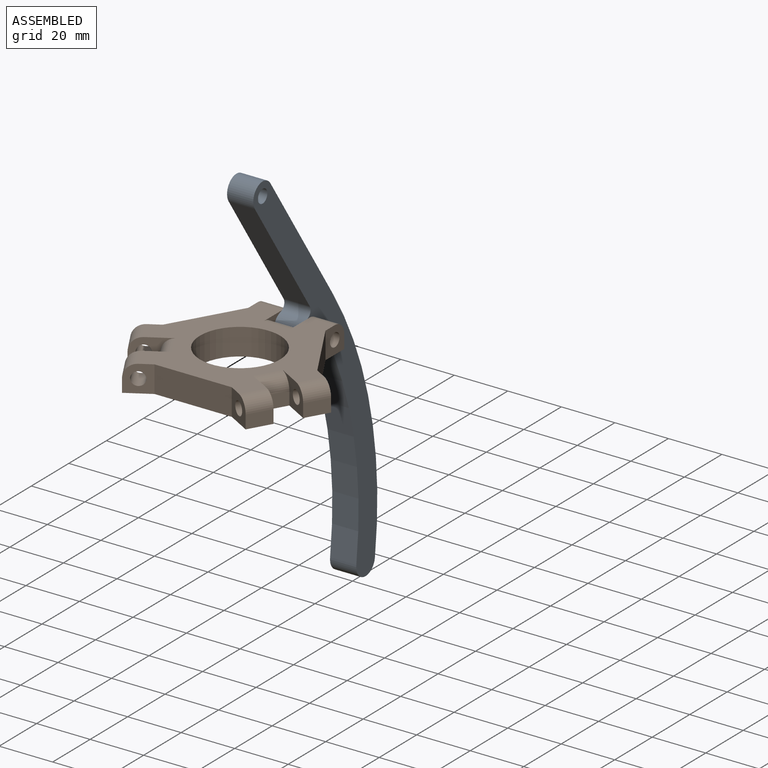
[diagram: assembled view]
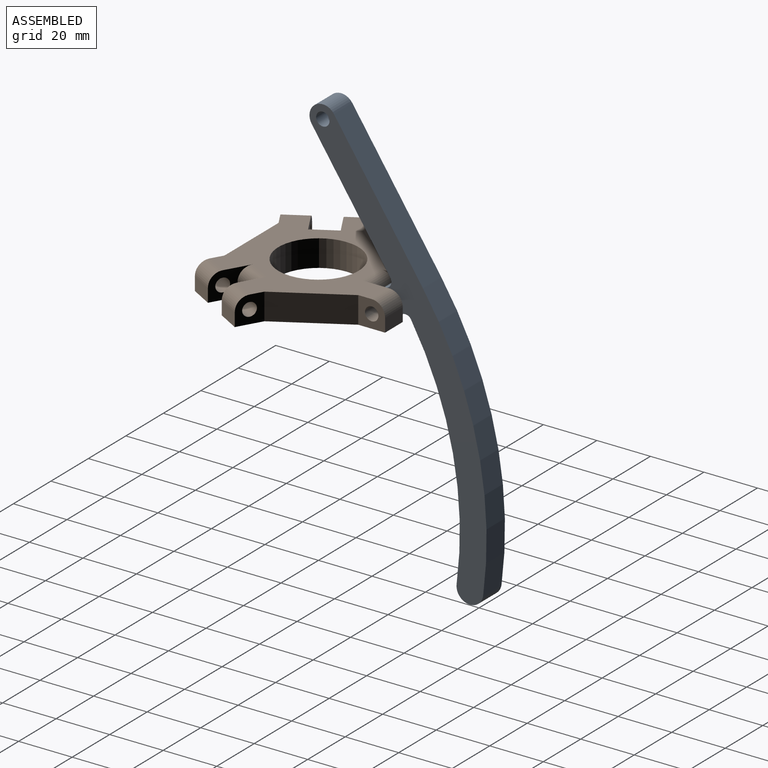
[diagram: assembled view, second angle]
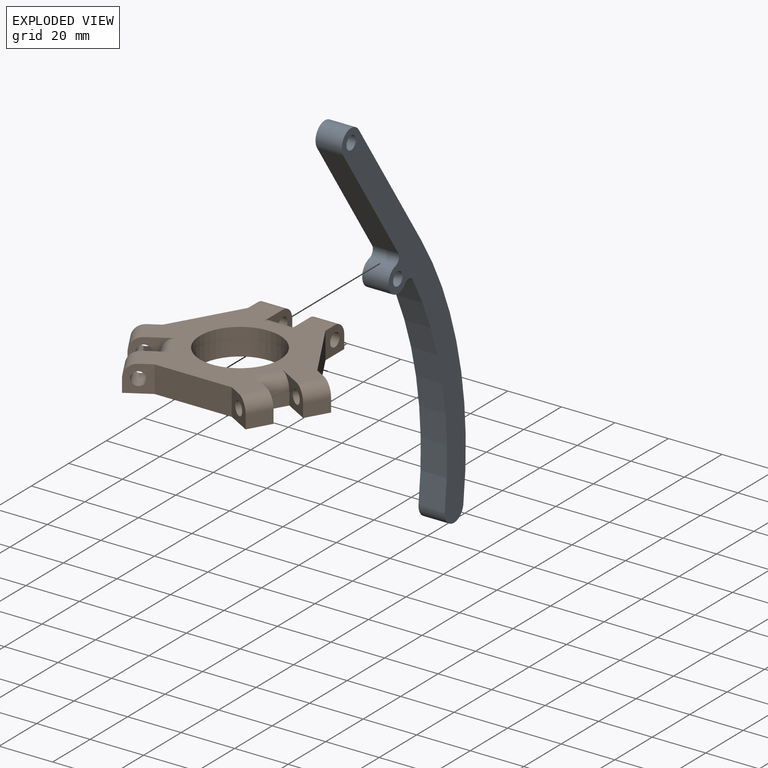
[diagram: exploded view]
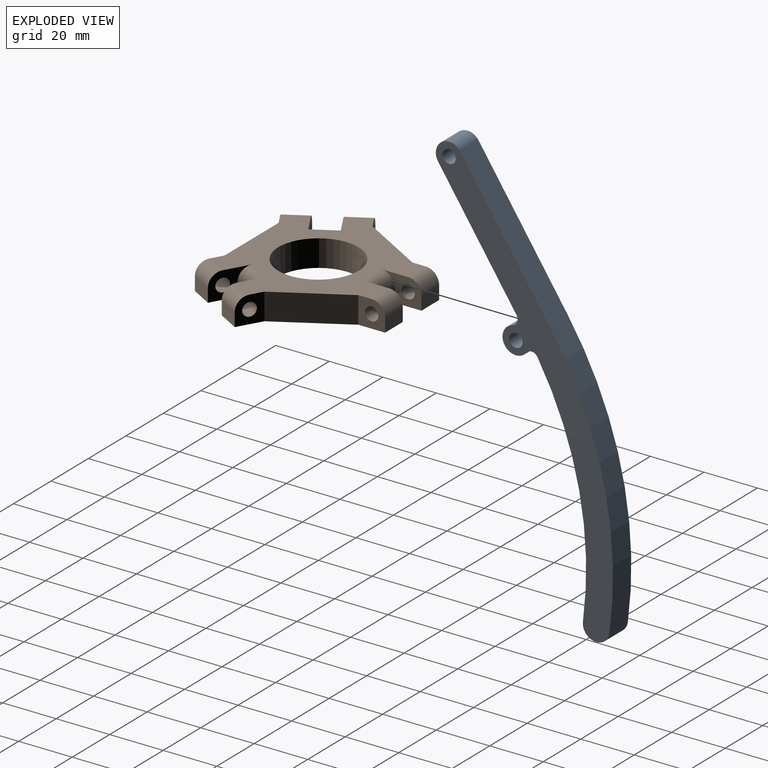
[diagram: exploded view, second angle]
ASSEMBLY  parts=2 mates=2
PART A: 13 faces, bbox 9.8x44.2x160.6 mm
  f0: plane 52.93x9.8mm, normal (0,-1,0), area 518.7mm2, adj f1,f9,f11,f12
  f1: cylinder r=2.5mm len=9.8mm, axis (-1,0,0), area 46.8mm2, adj f0,f2,f11,f12
  f2: cylinder r=5mm len=10mm, axis (-1,0,0), area 185.9mm2, adj f1,f3,f11,f12
  f3: cylinder r=2.5mm len=9.8mm, axis (-1,0,0), area 47.5mm2, adj f2,f4,f11,f12
  f4: cylinder r=131.94mm len=79.99mm, axis (-1,0,0), area 863.1mm2, adj f3,f5,f11,f12
  f5: cylinder r=5mm len=9.8mm, axis (-1,0,0), area 153.9mm2, adj f4,f6,f11,f12
  f6: cylinder r=141.94mm len=93.88mm, axis (-1,0,0), area 1005.3mm2, adj f5,f7,f11,f12
  f7: plane 60x9.8mm, normal (0,1,0), area 588mm2, adj f6,f9,f11,f12
  f8: cylinder r=2.5mm len=9.8mm, axis (-1,0,0), area 153.9mm2, adj f11,f12
  f9: cylinder r=5mm len=10mm, axis (-1,0,0), area 153.9mm2, adj f0,f7,f11,f12
  f10: cylinder r=2.5mm len=9.8mm, axis (-1,0,0), area 153.9mm2, adj f11,f12
  f11: plane 160.57x44.23mm, normal (1,0,0), area 1718mm2, adj f0,f1,f2,f3,f4,f5,f6,f7
  f12: plane 160.57x44.23mm, normal (-1,0,0), area 1718mm2, adj f0,f1,f2,f3,f4,f5,f6,f7
PART B: 42 faces, bbox 75.1x65x10 mm
  f0: cylinder r=2.5mm len=10.67mm, axis (-0.5,0.87,0), area 148.2mm2, adj f10,f12
  f1: cylinder r=2.5mm len=10.67mm, axis (-0.5,0.87,0), area 148.2mm2, adj f14,f16
  f2: cylinder r=2.5mm len=9.43mm, axis (1,0,0), area 148.2mm2, adj f4,f26
  f3: cylinder r=2.5mm len=9.43mm, axis (1,0,0), area 148.2mm2, adj f6,f8
  f4: plane 15x10mm, normal (-1,0,0), area 80.4mm2, adj f2,f5,f27,f29,f30,f33,f39
  f5: plane 10x5mm, normal (0,1,0), area 50mm2, adj f4,f6,f30,f39
  f6: plane 15x10mm, normal (1,0,0), area 80.4mm2, adj f3,f5,f7,f29,f30,f34,f39
  f7: plane 9.43x5mm, normal (0,1,0), area 47.2mm2, adj f6,f8,f30,f34
  f8: plane 10x10mm, normal (-1,0,0), area 75mm2, adj f3,f7,f9,f29,f30,f34
  f9: plane 25x14.43mm, normal (-0.87,0.5,0), area 288.7mm2, adj f8,f10,f29,f30
  f10: plane 10x8.66mm, normal (-0.5,0.87,0), area 75mm2, adj f0,f9,f11,f29,f30,f35
  f11: plane 8.17x5mm, normal (-0.87,-0.5,0), area 47.2mm2, adj f10,f12,f30,f35
  f12: plane 12.99x10mm, normal (0.5,-0.87,0), area 80.4mm2, adj f0,f11,f13,f29,f30,f35,f40
  f13: plane 8.66x5mm, normal (-0.87,-0.5,0), area 50mm2, adj f12,f14,f30,f40
  f14: plane 12.99x10mm, normal (-0.5,0.87,0), area 80.4mm2, adj f1,f13,f15,f29,f30,f36,f40
  f15: plane 8.17x5mm, normal (-0.87,-0.5,0), area 47.2mm2, adj f14,f16,f30,f36
  f16: plane 10x8.66mm, normal (0.5,-0.87,0), area 75mm2, adj f1,f15,f17,f29,f30,f36
  f17: plane 28.87x10mm, normal (0,-1,0), area 288.7mm2, adj f16,f18,f29,f30
  f18: plane 10x8.66mm, normal (-0.5,-0.87,0), area 75mm2, adj f17,f19,f29,f30,f32,f37
  f19: plane 8.17x5mm, normal (0.87,-0.5,0), area 47.2mm2, adj f18,f20,f30,f37
  f20: plane 12.99x10mm, normal (0.5,0.87,0), area 80.4mm2, adj f19,f21,f29,f30,f32,f37,f41
  f21: plane 8.66x5mm, normal (0.87,-0.5,0), area 50mm2, adj f20,f22,f30,f41
  f22: plane 12.99x10mm, normal (-0.5,-0.87,0), area 80.4mm2, adj f21,f23,f29,f30,f31,f38,f41
  f23: plane 8.17x5mm, normal (0.87,-0.5,0), area 47.2mm2, adj f22,f24,f30,f38
  f24: plane 10x8.66mm, normal (0.5,0.87,0), area 75mm2, adj f23,f25,f29,f30,f31,f38
  f25: plane 25x14.43mm, normal (0.87,0.5,0), area 288.7mm2, adj f24,f26,f29,f30
  f26: plane 10x10mm, normal (1,0,0), area 75mm2, adj f2,f25,f27,f29,f30,f33
  f27: plane 9.43x5mm, normal (0,1,0), area 47.2mm2, adj f4,f26,f30,f33
  f28: cylinder r=15mm len=30mm, axis (0,0,-1), area 942.5mm2, adj f29,f30
  f29: plane 66.4x57.5mm, normal (0,0,1), area 1591.2mm2, adj f4,f6,f8,f9,f10,f12,f14,f16
  f30: plane 75.06x65mm, normal (0,0,-1), area 2024.2mm2, adj f4,f5,f6,f7,f8,f9,f10,f11
  f31: cylinder r=2.5mm len=10.67mm, axis (-0.5,-0.87,0), area 148.2mm2, adj f22,f24
  f32: cylinder r=2.5mm len=10.67mm, axis (-0.5,-0.87,0), area 148.2mm2, adj f18,f20
  f33: cylinder r=5mm len=9.43mm, axis (1,0,0), area 74.1mm2, adj f4,f26,f27,f29
  f34: cylinder r=5mm len=9.43mm, axis (1,0,0), area 74.1mm2, adj f6,f7,f8,f29
  f35: cylinder r=5mm len=10.67mm, axis (-0.5,0.87,0), area 74.1mm2, adj f10,f11,f12,f29
  f36: cylinder r=5mm len=10.67mm, axis (-0.5,0.87,0), area 74.1mm2, adj f14,f15,f16,f29
  f37: cylinder r=5mm len=10.67mm, axis (-0.5,-0.87,0), area 74.1mm2, adj f18,f19,f20,f29
  f38: cylinder r=5mm len=10.67mm, axis (-0.5,-0.87,0), area 74.1mm2, adj f22,f23,f24,f29
  f39: cylinder r=5mm len=10mm, axis (1,0,0), area 78.5mm2, adj f4,f5,f6,f29
  f40: cylinder r=5mm len=11.16mm, axis (-0.5,0.87,0), area 78.5mm2, adj f12,f13,f14,f29
  f41: cylinder r=5mm len=11.16mm, axis (-0.5,-0.87,0), area 78.5mm2, adj f20,f21,f22,f29
PLACE A rot(axis=(1,0,0),33.7deg) t=(0,7.8,-25.79)mm
PLACE B t=(0,0,-10)mm fixed
MATE planar B.f39 <-> A.f2  axis (1,0,0) through (0,20,-5)mm
MATE cylindrical A.f2 <-> B.f33  axis (-1,0,0) through (0,30,-5)mm
